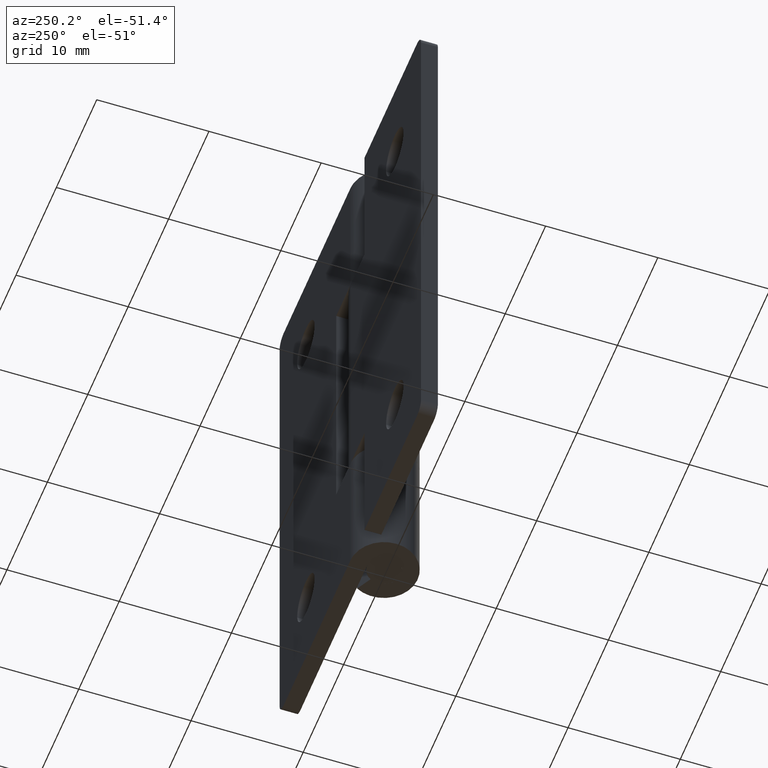
[diagram: clean part render]
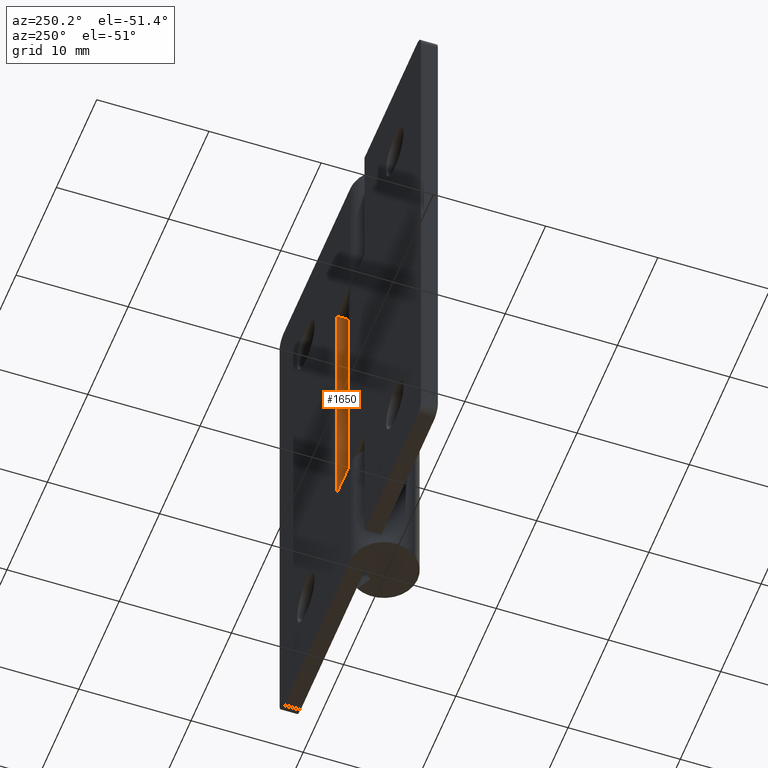
[diagram: same view with one face highlighted and labeled with its STEP entity id]
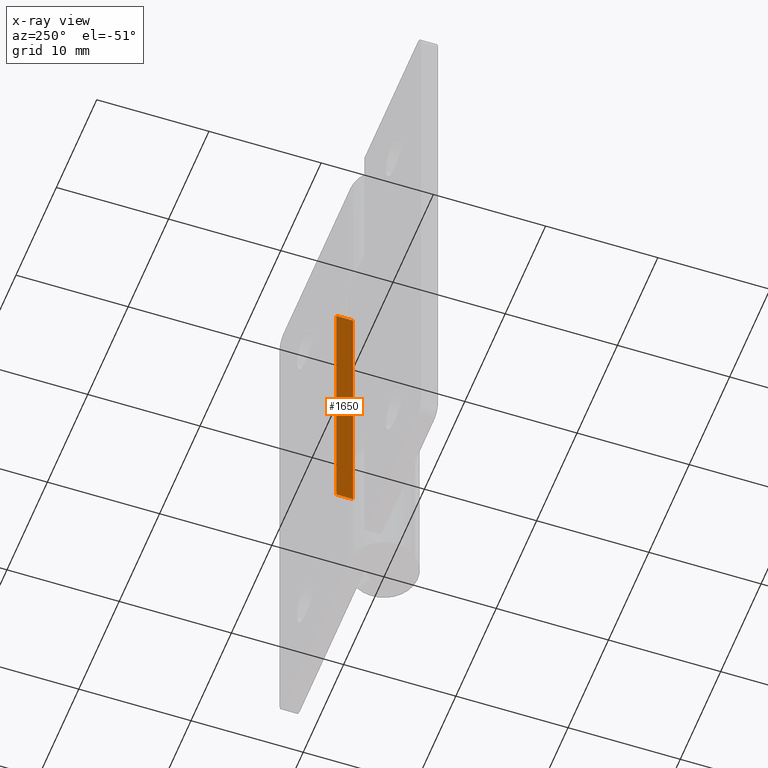
[diagram: x-ray of the same camera — body ghosted, the highlighted face saturated]
A machine part, auxiliary view. The second image highlights one B-rep face of the part: STEP entity #1650.
The next image is the same camera in x-ray: the body ghosted, the highlighted face saturated — about 7% of this face is hidden behind the body in this view.
In plain terms, the highlighted face is a freeform B-spline surface patch.
Its self-contained STEP definition (entity closure, byte-faithful):
#1480=CARTESIAN_POINT('',(3.500000000000000,1.499999999999946,13.0));
#1481=VERTEX_POINT('',#1480);
#1482=CARTESIAN_POINT('',(3.500000000000000,3.0,13.0));
#1483=VERTEX_POINT('',#1482);
#1484=CARTESIAN_POINT('',(3.500000000000000,1.499999999999946,13.0));
#1485=CARTESIAN_POINT('',(3.500000000000000,3.0,13.0));
#1486=QUASI_UNIFORM_CURVE('',1,(#1484,#1485),.UNSPECIFIED.,.F.,.U.);
#1487=EDGE_CURVE('',#1481,#1483,#1486,.T.);
#1609=CARTESIAN_POINT('',(3.500000000000000,3.0,37.000008000000001));
#1610=VERTEX_POINT('',#1609);
#1616=CARTESIAN_POINT('',(3.500000000000000,1.499999999999946,37.000008000000001));
#1617=VERTEX_POINT('',#1616);
#1618=CARTESIAN_POINT('',(3.500000000000000,1.499999999999946,37.000008000000001));
#1619=CARTESIAN_POINT('',(3.500000000000000,3.0,37.000008000000001));
#1620=QUASI_UNIFORM_CURVE('',1,(#1618,#1619),.UNSPECIFIED.,.F.,.U.);
#1621=EDGE_CURVE('',#1617,#1610,#1620,.T.);
#1631=CARTESIAN_POINT('',(3.500000000000000,1.425075002907234,11.801199732661560));
#1632=CARTESIAN_POINT('',(3.500000000000000,1.425075002907234,38.198807194454488));
#1633=CARTESIAN_POINT('',(3.500000000000000,3.074925037325847,11.801199732661560));
#1634=CARTESIAN_POINT('',(3.500000000000000,3.074925037325847,38.198807194454488));
#1635=B_SPLINE_SURFACE_WITH_KNOTS('',1,1,((#1631,#1633),(#1632,#1634)),.UNSPECIFIED.,.F.,.F.,.U.,(2,2),(2,2),(0.0,26.397607461792930),(0.041708334948495,0.958291687403247),.UNSPECIFIED.);
#1636=ORIENTED_EDGE('',*,*,#1621,.T.);
#1637=CARTESIAN_POINT('',(3.500000000000000,3.0,13.0));
#1638=CARTESIAN_POINT('',(3.500000000000000,3.0,37.000008000000001));
#1639=QUASI_UNIFORM_CURVE('',1,(#1637,#1638),.UNSPECIFIED.,.F.,.U.);
#1640=EDGE_CURVE('',#1483,#1610,#1639,.T.);
#1641=ORIENTED_EDGE('',*,*,#1640,.F.);
#1642=ORIENTED_EDGE('',*,*,#1487,.F.);
#1643=CARTESIAN_POINT('',(3.500000000000000,1.499999999999946,37.000008000000001));
#1644=CARTESIAN_POINT('',(3.500000000000000,1.499999999999946,13.0));
#1645=QUASI_UNIFORM_CURVE('',1,(#1643,#1644),.UNSPECIFIED.,.F.,.U.);
#1646=EDGE_CURVE('',#1617,#1481,#1645,.T.);
#1647=ORIENTED_EDGE('',*,*,#1646,.F.);
#1648=EDGE_LOOP('',(#1636,#1641,#1642,#1647));
#1649=FACE_OUTER_BOUND('',#1648,.T.);
#1650=ADVANCED_FACE('',(#1649),#1635,.T.);